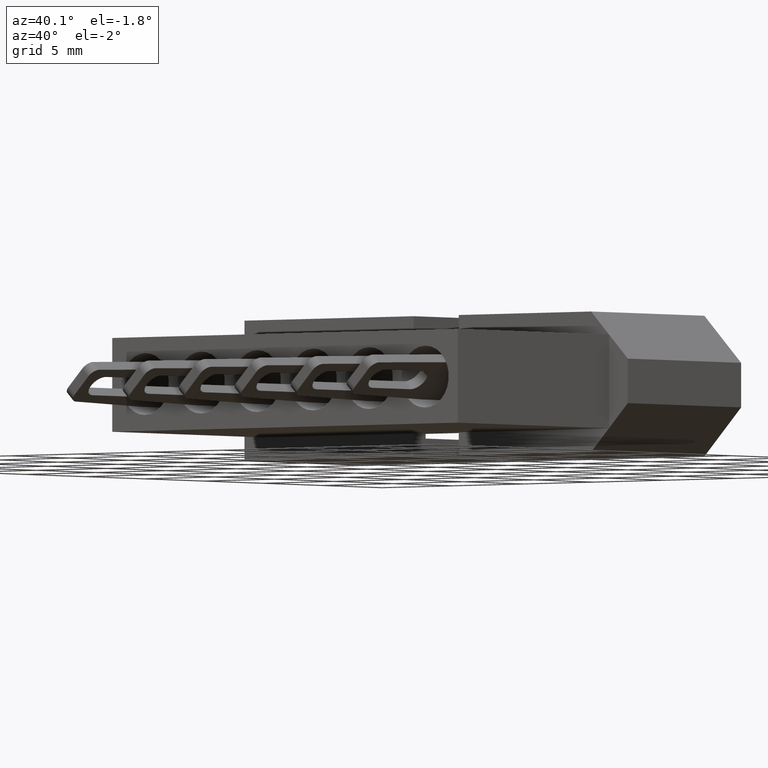
[diagram: clean part render]
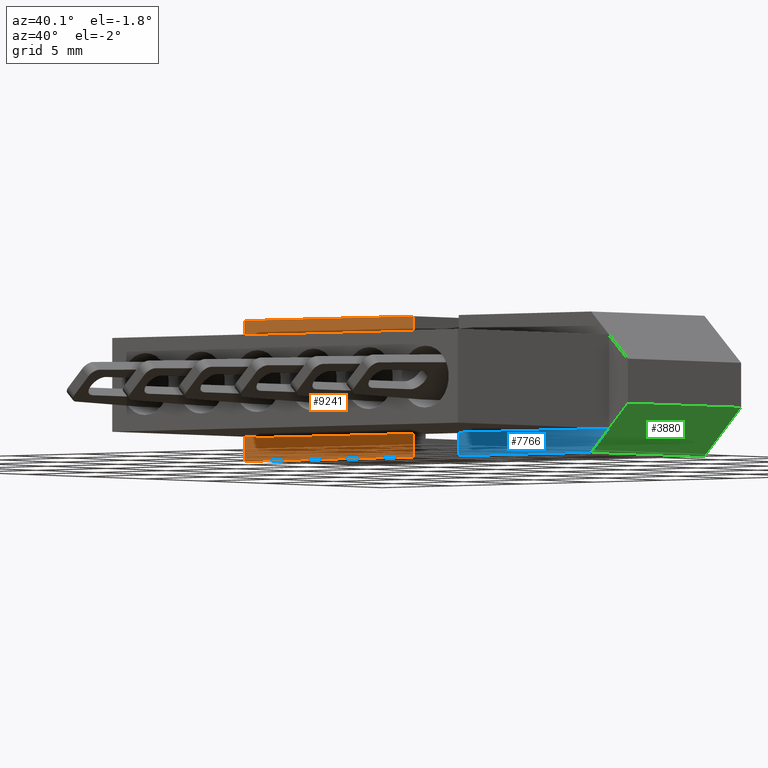
[diagram: same view with three faces highlighted in distinct colors, each labeled with its STEP entity id]
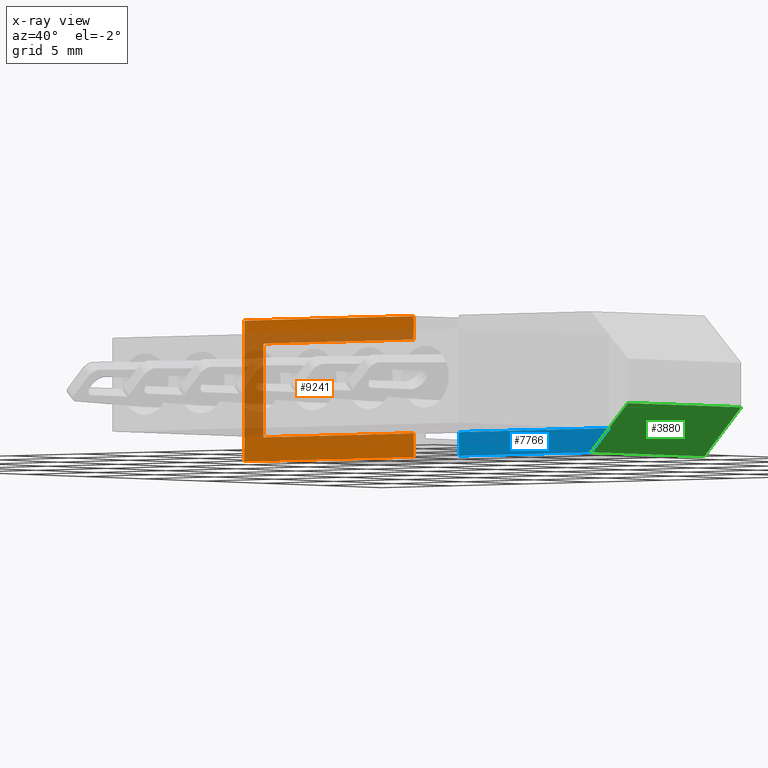
[diagram: x-ray of the same camera — body ghosted, the three highlighted faces saturated]
A machine part, auxiliary view with three faces highlighted in distinct colors.
The next image is the same camera in x-ray (body ghosted, the three faces saturated) — at least one of them is partly hidden behind the body in this view.
Their STEP definitions:

[orange] entity #9241 — the highlighted planar face has unit normal (0, 1, 0).
#9 = VECTOR ( 'NONE', #2445, 1000.000000000000000 ) ;
#249 = LINE ( 'NONE', #8903, #9 ) ;
#636 = PLANE ( 'NONE',  #1955 ) ;
#663 = DIRECTION ( 'NONE',  ( 0.0000000000000000000, -0.0000000000000000000, 1.000000000000000000 ) ) ;
#669 = EDGE_LOOP ( 'NONE', ( #9301, #2876, #1000, #8034, #4712, #5831, #6928, #8900 ) ) ;
#1000 = ORIENTED_EDGE ( 'NONE', *, *, #6048, .T. ) ;
#1109 = VECTOR ( 'NONE', #6751, 1000.000000000000000 ) ;
#1436 = EDGE_CURVE ( 'NONE', #2541, #7449, #4934, .T. ) ;
#1587 = VECTOR ( 'NONE', #4949, 1000.000000000000000 ) ;
#1955 = AXIS2_PLACEMENT_3D ( 'NONE', #4999, #7164, #663 ) ;
#1984 = VECTOR ( 'NONE', #2110, 1000.000000000000000 ) ;
#2085 = CARTESIAN_POINT ( 'NONE',  ( -3.657600000000000400, 0.0000000000000000000, -3.809999999999999600 ) ) ;
#2101 = VERTEX_POINT ( 'NONE', #5292 ) ;
#2110 = DIRECTION ( 'NONE',  ( -1.000000000000000000, -0.0000000000000000000, -0.0000000000000000000 ) ) ;
#2445 = DIRECTION ( 'NONE',  ( 1.000000000000000000, 0.0000000000000000000, 0.0000000000000000000 ) ) ;
#2541 = VERTEX_POINT ( 'NONE', #6702 ) ;
#2583 = DIRECTION ( 'NONE',  ( -0.0000000000000000000, -0.0000000000000000000, 1.000000000000000000 ) ) ;
#2827 = EDGE_CURVE ( 'NONE', #2101, #2541, #4241, .T. ) ;
#2857 = LINE ( 'NONE', #6174, #7715 ) ;
#2870 = CARTESIAN_POINT ( 'NONE',  ( 8.305799999999994300, 0.0000000000000000000, -2.539999999999999600 ) ) ;
#2876 = ORIENTED_EDGE ( 'NONE', *, *, #3520, .T. ) ;
#3277 = CARTESIAN_POINT ( 'NONE',  ( -2.324100000000000100, 0.0000000000000000000, -2.540000000000000000 ) ) ;
#3358 = VECTOR ( 'NONE', #2583, 1000.000000000000000 ) ;
#3520 = EDGE_CURVE ( 'NONE', #2101, #3944, #2857, .T. ) ;
#3558 = VERTEX_POINT ( 'NONE', #4850 ) ;
#3864 = EDGE_CURVE ( 'NONE', #9077, #6152, #249, .T. ) ;
#3926 = CARTESIAN_POINT ( 'NONE',  ( 8.305799999999994300, 0.0000000000000000000, 2.539999999999999600 ) ) ;
#3944 = VERTEX_POINT ( 'NONE', #6905 ) ;
#4241 = LINE ( 'NONE', #2870, #6939 ) ;
#4349 = CARTESIAN_POINT ( 'NONE',  ( -3.657600000000000400, 0.0000000000000000000, 3.809999999999999600 ) ) ;
#4673 = EDGE_CURVE ( 'NONE', #5829, #3558, #6906, .T. ) ;
#4681 = CARTESIAN_POINT ( 'NONE',  ( -3.657600000000000400, 0.0000000000000000000, -3.809999999999999600 ) ) ;
#4712 = ORIENTED_EDGE ( 'NONE', *, *, #8239, .T. ) ;
#4850 = CARTESIAN_POINT ( 'NONE',  ( 8.305799999999994300, 0.0000000000000000000, 3.809999999999999600 ) ) ;
#4934 = LINE ( 'NONE', #2085, #1984 ) ;
#4949 = DIRECTION ( 'NONE',  ( 1.000000000000000000, 0.0000000000000000000, 0.0000000000000000000 ) ) ;
#4999 = CARTESIAN_POINT ( 'NONE',  ( 0.0000000000000000000, 0.0000000000000000000, 0.0000000000000000000 ) ) ;
#5091 = FACE_OUTER_BOUND ( 'NONE', #669, .T. ) ;
#5292 = CARTESIAN_POINT ( 'NONE',  ( 8.305799999999994300, 0.0000000000000000000, -2.539999999999999600 ) ) ;
#5331 = DIRECTION ( 'NONE',  ( 0.0000000000000000000, 0.0000000000000000000, 1.000000000000000000 ) ) ;
#5470 = DIRECTION ( 'NONE',  ( -1.000000000000000000, -0.0000000000000000000, -0.0000000000000000000 ) ) ;
#5504 = LINE ( 'NONE', #3926, #3358 ) ;
#5829 = VERTEX_POINT ( 'NONE', #7160 ) ;
#5831 = ORIENTED_EDGE ( 'NONE', *, *, #4673, .F. ) ;
#6048 = EDGE_CURVE ( 'NONE', #3944, #9077, #8257, .T. ) ;
#6152 = VERTEX_POINT ( 'NONE', #9153 ) ;
#6174 = CARTESIAN_POINT ( 'NONE',  ( -2.324100000000000100, 0.0000000000000000000, -2.540000000000000000 ) ) ;
#6702 = CARTESIAN_POINT ( 'NONE',  ( 8.305799999999994300, 0.0000000000000000000, -3.809999999999999600 ) ) ;
#6751 = DIRECTION ( 'NONE',  ( 0.0000000000000000000, 0.0000000000000000000, 1.000000000000000000 ) ) ;
#6905 = CARTESIAN_POINT ( 'NONE',  ( -2.324100000000000100, 0.0000000000000000000, -2.540000000000000000 ) ) ;
#6906 = LINE ( 'NONE', #4349, #1587 ) ;
#6928 = ORIENTED_EDGE ( 'NONE', *, *, #8963, .F. ) ;
#6939 = VECTOR ( 'NONE', #8640, 1000.000000000000000 ) ;
#7160 = CARTESIAN_POINT ( 'NONE',  ( -3.657600000000000400, 0.0000000000000000000, 3.809999999999999600 ) ) ;
#7164 = DIRECTION ( 'NONE',  ( 0.0000000000000000000, 1.000000000000000000, 0.0000000000000000000 ) ) ;
#7449 = VERTEX_POINT ( 'NONE', #4681 ) ;
#7559 = CARTESIAN_POINT ( 'NONE',  ( -3.657600000000000400, 0.0000000000000000000, -3.809999999999999600 ) ) ;
#7715 = VECTOR ( 'NONE', #5470, 1000.000000000000000 ) ;
#8034 = ORIENTED_EDGE ( 'NONE', *, *, #3864, .T. ) ;
#8209 = LINE ( 'NONE', #7559, #8994 ) ;
#8239 = EDGE_CURVE ( 'NONE', #6152, #3558, #5504, .T. ) ;
#8257 = LINE ( 'NONE', #3277, #1109 ) ;
#8640 = DIRECTION ( 'NONE',  ( -0.0000000000000000000, -0.0000000000000000000, -1.000000000000000000 ) ) ;
#8900 = ORIENTED_EDGE ( 'NONE', *, *, #1436, .F. ) ;
#8903 = CARTESIAN_POINT ( 'NONE',  ( -2.324100000000000100, 0.0000000000000000000, 2.540000000000000000 ) ) ;
#8963 = EDGE_CURVE ( 'NONE', #7449, #5829, #8209, .T. ) ;
#8994 = VECTOR ( 'NONE', #5331, 1000.000000000000000 ) ;
#9077 = VERTEX_POINT ( 'NONE', #9170 ) ;
#9153 = CARTESIAN_POINT ( 'NONE',  ( 8.305799999999992500, 0.0000000000000000000, 2.540000000000000000 ) ) ;
#9170 = CARTESIAN_POINT ( 'NONE',  ( -2.324100000000000100, 0.0000000000000000000, 2.540000000000000000 ) ) ;
#9241 = ADVANCED_FACE ( 'NONE', ( #5091 ), #636, .F. ) ;
#9301 = ORIENTED_EDGE ( 'NONE', *, *, #2827, .F. ) ;

[blue] entity #7766 — the highlighted planar face has unit normal (0, 1, 0).
#117 = CARTESIAN_POINT ( 'NONE',  ( 11.50620000000000200, 3.919359615991196600E-016, -2.539999999999999600 ) ) ;
#136 = DIRECTION ( 'NONE',  ( -1.000000000000000000, -0.0000000000000000000, -0.0000000000000000000 ) ) ;
#400 = EDGE_LOOP ( 'NONE', ( #1402, #2199, #3242, #4892 ) ) ;
#1185 = DIRECTION ( 'NONE',  ( -1.000000000000000000, -0.0000000000000000000, -0.0000000000000000000 ) ) ;
#1402 = ORIENTED_EDGE ( 'NONE', *, *, #7335, .T. ) ;
#2199 = ORIENTED_EDGE ( 'NONE', *, *, #7997, .F. ) ;
#2377 = CARTESIAN_POINT ( 'NONE',  ( 22.13609999999999900, 0.0000000000000000000, -2.540000000000000000 ) ) ;
#2402 = CARTESIAN_POINT ( 'NONE',  ( 20.86609999999999600, 0.0000000000000000000, -3.809999999999999600 ) ) ;
#2739 = PLANE ( 'NONE',  #2912 ) ;
#2765 = DIRECTION ( 'NONE',  ( 0.0000000000000000000, -0.0000000000000000000, 1.000000000000000000 ) ) ;
#2912 = AXIS2_PLACEMENT_3D ( 'NONE', #3472, #8537, #2765 ) ;
#3034 = DIRECTION ( 'NONE',  ( -0.0000000000000000000, -0.0000000000000000000, -1.000000000000000000 ) ) ;
#3242 = ORIENTED_EDGE ( 'NONE', *, *, #3350, .F. ) ;
#3261 = EDGE_CURVE ( 'NONE', #4353, #4444, #9198, .T. ) ;
#3327 = CARTESIAN_POINT ( 'NONE',  ( 20.86609999999999600, 0.0000000000000000000, -3.809999999999999600 ) ) ;
#3350 = EDGE_CURVE ( 'NONE', #4353, #3471, #5795, .T. ) ;
#3378 = VECTOR ( 'NONE', #3034, 1000.000000000000000 ) ;
#3471 = VERTEX_POINT ( 'NONE', #3327 ) ;
#3472 = CARTESIAN_POINT ( 'NONE',  ( 0.0000000000000000000, 0.0000000000000000000, 0.0000000000000000000 ) ) ;
#3863 = DIRECTION ( 'NONE',  ( -0.7071067811865490200, -0.0000000000000000000, -0.7071067811865460200 ) ) ;
#4169 = LINE ( 'NONE', #8415, #7089 ) ;
#4353 = VERTEX_POINT ( 'NONE', #2377 ) ;
#4444 = VERTEX_POINT ( 'NONE', #8276 ) ;
#4892 = ORIENTED_EDGE ( 'NONE', *, *, #3261, .T. ) ;
#5168 = FACE_OUTER_BOUND ( 'NONE', #400, .T. ) ;
#5332 = VECTOR ( 'NONE', #136, 1000.000000000000000 ) ;
#5453 = VERTEX_POINT ( 'NONE', #7566 ) ;
#5795 = LINE ( 'NONE', #2402, #6582 ) ;
#6582 = VECTOR ( 'NONE', #3863, 1000.000000000000100 ) ;
#7089 = VECTOR ( 'NONE', #1185, 1000.000000000000000 ) ;
#7335 = EDGE_CURVE ( 'NONE', #4444, #5453, #8476, .T. ) ;
#7566 = CARTESIAN_POINT ( 'NONE',  ( 11.50620000000000200, 3.919359615991196600E-016, -3.809999999999999600 ) ) ;
#7766 = ADVANCED_FACE ( 'NONE', ( #5168 ), #2739, .F. ) ;
#7997 = EDGE_CURVE ( 'NONE', #3471, #5453, #4169, .T. ) ;
#8276 = CARTESIAN_POINT ( 'NONE',  ( 11.50619999999999800, 0.0000000000000000000, -2.540000000000000000 ) ) ;
#8415 = CARTESIAN_POINT ( 'NONE',  ( -3.657600000000000400, 0.0000000000000000000, -3.809999999999999600 ) ) ;
#8476 = LINE ( 'NONE', #117, #3378 ) ;
#8511 = CARTESIAN_POINT ( 'NONE',  ( -2.324100000000000100, 0.0000000000000000000, -2.540000000000000000 ) ) ;
#8537 = DIRECTION ( 'NONE',  ( 0.0000000000000000000, 1.000000000000000000, 0.0000000000000000000 ) ) ;
#9198 = LINE ( 'NONE', #8511, #5332 ) ;

[green] entity #3880 — the highlighted planar face has unit normal (-0.7071, 0, 0.7071).
#311 = EDGE_CURVE ( 'NONE', #5913, #8066, #2221, .T. ) ;
#544 = VECTOR ( 'NONE', #6805, 1000.000000000000000 ) ;
#780 = ORIENTED_EDGE ( 'NONE', *, *, #3193, .T. ) ;
#836 = CARTESIAN_POINT ( 'NONE',  ( 23.46960000000000000, 9.525000000000000400, -1.206500000000005700 ) ) ;
#1013 = CARTESIAN_POINT ( 'NONE',  ( 20.86609999999999600, 9.525000000000000400, -3.809999999999999600 ) ) ;
#1488 = EDGE_CURVE ( 'NONE', #2317, #4353, #6175, .T. ) ;
#1829 = ORIENTED_EDGE ( 'NONE', *, *, #7085, .F. ) ;
#2221 = LINE ( 'NONE', #1013, #7323 ) ;
#2317 = VERTEX_POINT ( 'NONE', #7966 ) ;
#2377 = CARTESIAN_POINT ( 'NONE',  ( 22.13609999999999900, 0.0000000000000000000, -2.540000000000000000 ) ) ;
#2402 = CARTESIAN_POINT ( 'NONE',  ( 20.86609999999999600, 0.0000000000000000000, -3.809999999999999600 ) ) ;
#2972 = VECTOR ( 'NONE', #4085, 1000.000000000000000 ) ;
#2988 = ORIENTED_EDGE ( 'NONE', *, *, #3350, .T. ) ;
#3192 = FACE_OUTER_BOUND ( 'NONE', #6073, .T. ) ;
#3193 = EDGE_CURVE ( 'NONE', #5913, #2317, #3886, .T. ) ;
#3327 = CARTESIAN_POINT ( 'NONE',  ( 20.86609999999999600, 0.0000000000000000000, -3.809999999999999600 ) ) ;
#3344 = VECTOR ( 'NONE', #7917, 1000.000000000000100 ) ;
#3350 = EDGE_CURVE ( 'NONE', #4353, #3471, #5795, .T. ) ;
#3471 = VERTEX_POINT ( 'NONE', #3327 ) ;
#3824 = LINE ( 'NONE', #3901, #544 ) ;
#3863 = DIRECTION ( 'NONE',  ( -0.7071067811865490200, -0.0000000000000000000, -0.7071067811865460200 ) ) ;
#3880 = ADVANCED_FACE ( 'NONE', ( #3192 ), #8836, .F. ) ;
#3886 = LINE ( 'NONE', #5457, #2972 ) ;
#3901 = CARTESIAN_POINT ( 'NONE',  ( 20.86609999999999600, 9.525000000000000400, -3.809999999999999600 ) ) ;
#3977 = CARTESIAN_POINT ( 'NONE',  ( 20.86609999999999600, 9.525000000000000400, -3.809999999999999600 ) ) ;
#4076 = DIRECTION ( 'NONE',  ( -0.7071067811865460200, 0.0000000000000000000, 0.7071067811865490200 ) ) ;
#4085 = DIRECTION ( 'NONE',  ( -0.0000000000000000000, -1.000000000000000000, -0.0000000000000000000 ) ) ;
#4353 = VERTEX_POINT ( 'NONE', #2377 ) ;
#4801 = DIRECTION ( 'NONE',  ( 0.7071067811865490200, 0.0000000000000000000, 0.7071067811865460200 ) ) ;
#5338 = DIRECTION ( 'NONE',  ( -0.7071067811865490200, -0.0000000000000000000, -0.7071067811865460200 ) ) ;
#5457 = CARTESIAN_POINT ( 'NONE',  ( 23.46960000000000000, 9.525000000000000400, -1.206500000000005700 ) ) ;
#5795 = LINE ( 'NONE', #2402, #6582 ) ;
#5913 = VERTEX_POINT ( 'NONE', #836 ) ;
#6073 = EDGE_LOOP ( 'NONE', ( #7451, #2988, #1829, #7034, #780 ) ) ;
#6175 = LINE ( 'NONE', #6488, #3344 ) ;
#6488 = CARTESIAN_POINT ( 'NONE',  ( 20.86609999999999600, 0.0000000000000000000, -3.809999999999999600 ) ) ;
#6582 = VECTOR ( 'NONE', #3863, 1000.000000000000100 ) ;
#6805 = DIRECTION ( 'NONE',  ( -0.0000000000000000000, -1.000000000000000000, -0.0000000000000000000 ) ) ;
#7034 = ORIENTED_EDGE ( 'NONE', *, *, #311, .F. ) ;
#7085 = EDGE_CURVE ( 'NONE', #8066, #3471, #3824, .T. ) ;
#7101 = CARTESIAN_POINT ( 'NONE',  ( 20.86609999999999600, 9.525000000000000400, -3.809999999999999600 ) ) ;
#7323 = VECTOR ( 'NONE', #5338, 1000.000000000000100 ) ;
#7451 = ORIENTED_EDGE ( 'NONE', *, *, #1488, .T. ) ;
#7917 = DIRECTION ( 'NONE',  ( -0.7071067811865490200, -0.0000000000000000000, -0.7071067811865460200 ) ) ;
#7966 = CARTESIAN_POINT ( 'NONE',  ( 23.46960000000000000, 0.0000000000000000000, -1.206500000000005700 ) ) ;
#8066 = VERTEX_POINT ( 'NONE', #7101 ) ;
#8286 = AXIS2_PLACEMENT_3D ( 'NONE', #3977, #4076, #4801 ) ;
#8836 = PLANE ( 'NONE',  #8286 ) ;